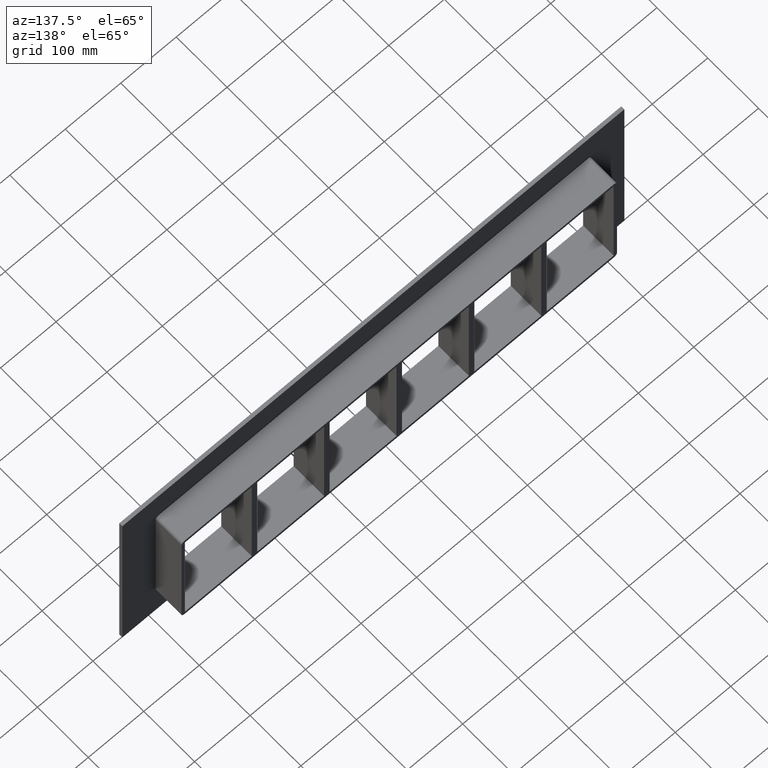
[diagram: clean part render]
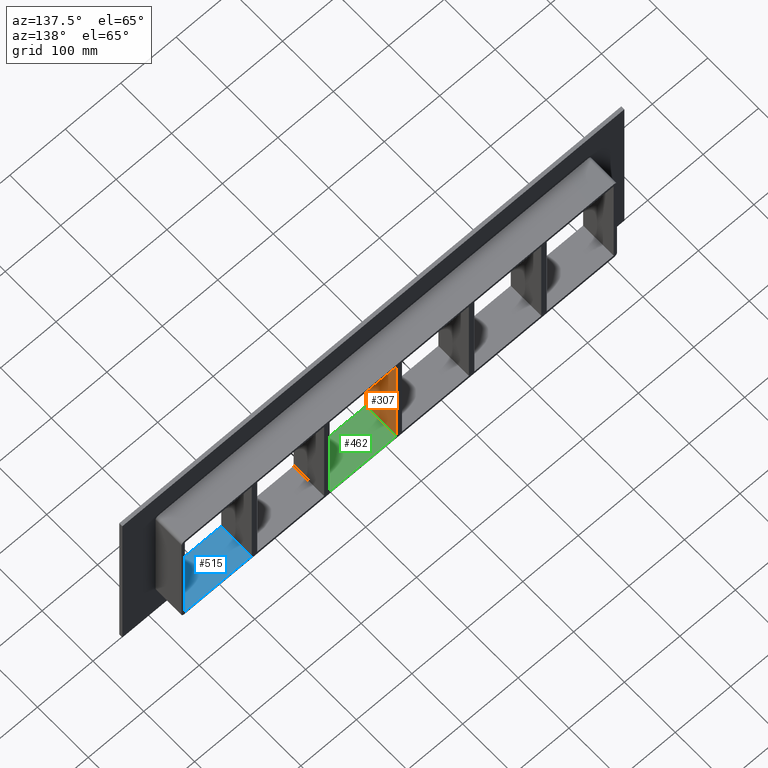
[diagram: same view with three faces highlighted in distinct colors, each labeled with its STEP entity id]
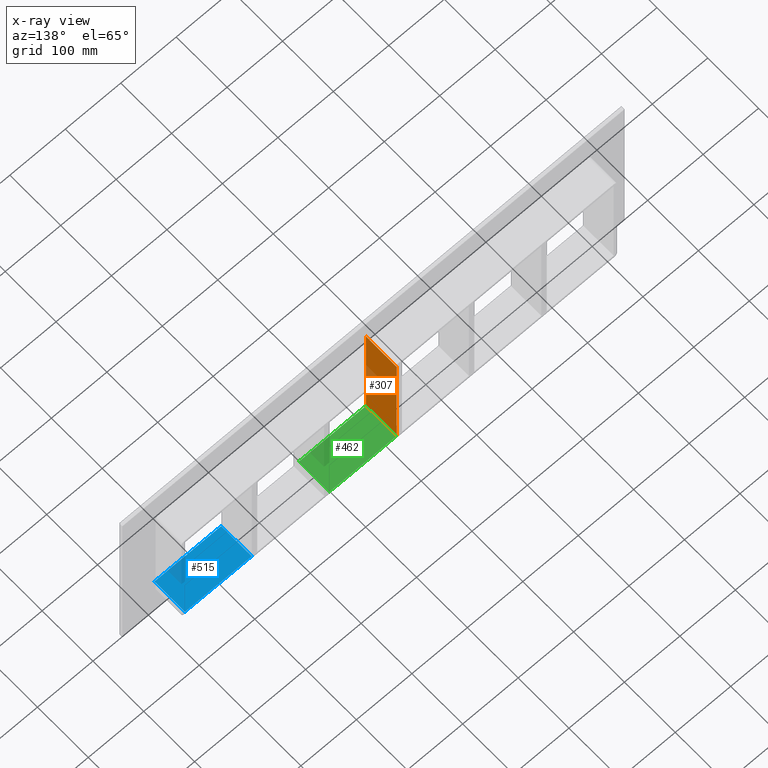
[diagram: x-ray of the same camera — body ghosted, the three highlighted faces saturated]
A machine part, auxiliary view with three faces highlighted in distinct colors.
The next image is the same camera in x-ray (body ghosted, the three faces saturated) — at least one of them is partly hidden behind the body in this view.
Their STEP definitions:

[orange] entity #307 — the highlighted planar face has unit normal (1, 0, 0).
#268=CARTESIAN_POINT('',(4.999999999996376,-3.0,109.00000000000004));
#269=DIRECTION('',(1.0,0.0,0.0));
#270=DIRECTION('',(0.0,0.0,-1.0));
#271=AXIS2_PLACEMENT_3D('',#268,#269,#270);
#272=PLANE('',#271);
#273=CARTESIAN_POINT('',(4.999999999996376,-3.0,109.00000000000004));
#274=VERTEX_POINT('',#273);
#275=CARTESIAN_POINT('',(4.999999999996376,-3.0,-108.99999999998428));
#276=VERTEX_POINT('',#275);
#277=CARTESIAN_POINT('',(4.999999999996376,-3.0,109.00000000000004));
#278=DIRECTION('',(0.0,0.0,-1.0));
#279=VECTOR('',#278,217.99999999998434);
#280=LINE('',#277,#279);
#281=EDGE_CURVE('',#274,#276,#280,.T.);
#282=ORIENTED_EDGE('',*,*,#281,.T.);
#283=CARTESIAN_POINT('',(4.999999999996376,57.0,-108.9999999999843));
#284=VERTEX_POINT('',#283);
#285=CARTESIAN_POINT('',(4.999999999996376,57.000000000000007,-109.0));
#286=DIRECTION('',(0.0,-1.0,0.0));
#287=VECTOR('',#286,60.000000000000007);
#288=LINE('',#285,#287);
#289=EDGE_CURVE('',#284,#276,#288,.T.);
#290=ORIENTED_EDGE('',*,*,#289,.F.);
#291=CARTESIAN_POINT('',(4.999999999996376,57.0,109.00000000000004));
#292=VERTEX_POINT('',#291);
#293=CARTESIAN_POINT('',(4.999999999996376,57.0,109.00000000000004));
#294=DIRECTION('',(0.0,0.0,-1.0));
#295=VECTOR('',#294,217.99999999998434);
#296=LINE('',#293,#295);
#297=EDGE_CURVE('',#292,#284,#296,.T.);
#298=ORIENTED_EDGE('',*,*,#297,.F.);
#299=CARTESIAN_POINT('',(4.999999999996376,-3.0,109.00000000000003));
#300=DIRECTION('',(0.0,1.0,0.0));
#301=VECTOR('',#300,60.000000000000007);
#302=LINE('',#299,#301);
#303=EDGE_CURVE('',#274,#292,#302,.T.);
#304=ORIENTED_EDGE('',*,*,#303,.F.);
#305=EDGE_LOOP('',(#282,#290,#298,#304));
#306=FACE_OUTER_BOUND('',#305,.T.);
#307=ADVANCED_FACE('',(#306),#272,.T.);

[blue] entity #515 — the highlighted planar face has unit normal (0, 0, -1).
#115=CARTESIAN_POINT('',(265.99999999999642,-3.0,-108.99999999998428));
#116=VERTEX_POINT('',#115);
#123=CARTESIAN_POINT('',(265.99999999999642,57.0,-108.9999999999843));
#124=VERTEX_POINT('',#123);
#125=CARTESIAN_POINT('',(265.99999999999648,57.000000000000007,-109.0));
#126=DIRECTION('',(0.0,-1.0,0.0));
#127=VECTOR('',#126,60.000000000000007);
#128=LINE('',#125,#127);
#129=EDGE_CURVE('',#124,#116,#128,.T.);
#485=CARTESIAN_POINT('',(386.50000000000011,0.0,-109.0));
#486=DIRECTION('',(0.0,0.0,-1.0));
#487=DIRECTION('',(-1.0,0.0,0.0));
#488=AXIS2_PLACEMENT_3D('',#485,#486,#487);
#489=PLANE('',#488);
#490=ORIENTED_EDGE('',*,*,#129,.T.);
#491=CARTESIAN_POINT('',(386.50000000000011,-3.0,-109.0));
#492=VERTEX_POINT('',#491);
#493=CARTESIAN_POINT('',(386.50000000000011,-3.0,-109.0));
#494=DIRECTION('',(-1.0,0.0,0.0));
#495=VECTOR('',#494,120.50000000000369);
#496=LINE('',#493,#495);
#497=EDGE_CURVE('',#492,#116,#496,.T.);
#498=ORIENTED_EDGE('',*,*,#497,.F.);
#499=CARTESIAN_POINT('',(386.50000000000011,57.0,-109.0));
#500=VERTEX_POINT('',#499);
#501=CARTESIAN_POINT('',(386.50000000000011,56.999999999999993,-109.0));
#502=DIRECTION('',(0.0,-1.0,0.0));
#503=VECTOR('',#502,59.999999999999993);
#504=LINE('',#501,#503);
#505=EDGE_CURVE('',#500,#492,#504,.T.);
#506=ORIENTED_EDGE('',*,*,#505,.F.);
#507=CARTESIAN_POINT('',(265.99999999999642,57.0,-109.0));
#508=DIRECTION('',(1.0,0.0,0.0));
#509=VECTOR('',#508,120.50000000000369);
#510=LINE('',#507,#509);
#511=EDGE_CURVE('',#124,#500,#510,.T.);
#512=ORIENTED_EDGE('',*,*,#511,.F.);
#513=EDGE_LOOP('',(#490,#498,#506,#512));
#514=FACE_OUTER_BOUND('',#513,.T.);
#515=ADVANCED_FACE('',(#514),#489,.F.);

[green] entity #462 — the highlighted planar face has unit normal (0, 0, -1).
#153=CARTESIAN_POINT('',(125.49999999999862,-3.0,-109.0));
#154=VERTEX_POINT('',#153);
#171=CARTESIAN_POINT('',(125.49999999999862,57.0,-109.0));
#172=VERTEX_POINT('',#171);
#179=CARTESIAN_POINT('',(125.49999999999862,-3.0,-109.0));
#180=DIRECTION('',(0.0,1.0,0.0));
#181=VECTOR('',#180,60.000000000000007);
#182=LINE('',#179,#181);
#183=EDGE_CURVE('',#154,#172,#182,.T.);
#275=CARTESIAN_POINT('',(4.999999999996376,-3.0,-108.99999999998428));
#276=VERTEX_POINT('',#275);
#283=CARTESIAN_POINT('',(4.999999999996376,57.0,-108.9999999999843));
#284=VERTEX_POINT('',#283);
#285=CARTESIAN_POINT('',(4.999999999996376,57.000000000000007,-109.0));
#286=DIRECTION('',(0.0,-1.0,0.0));
#287=VECTOR('',#286,60.000000000000007);
#288=LINE('',#285,#287);
#289=EDGE_CURVE('',#284,#276,#288,.T.);
#441=CARTESIAN_POINT('',(386.50000000000011,0.0,-109.0));
#442=DIRECTION('',(0.0,0.0,-1.0));
#443=DIRECTION('',(-1.0,0.0,0.0));
#444=AXIS2_PLACEMENT_3D('',#441,#442,#443);
#445=PLANE('',#444);
#446=ORIENTED_EDGE('',*,*,#183,.T.);
#447=CARTESIAN_POINT('',(4.99999999999639,57.0,-109.0));
#448=DIRECTION('',(1.0,0.0,0.0));
#449=VECTOR('',#448,120.50000000000223);
#450=LINE('',#447,#449);
#451=EDGE_CURVE('',#284,#172,#450,.T.);
#452=ORIENTED_EDGE('',*,*,#451,.F.);
#453=ORIENTED_EDGE('',*,*,#289,.T.);
#454=CARTESIAN_POINT('',(125.49999999999862,-3.0,-109.0));
#455=DIRECTION('',(-1.0,0.0,0.0));
#456=VECTOR('',#455,120.50000000000223);
#457=LINE('',#454,#456);
#458=EDGE_CURVE('',#154,#276,#457,.T.);
#459=ORIENTED_EDGE('',*,*,#458,.F.);
#460=EDGE_LOOP('',(#446,#452,#453,#459));
#461=FACE_OUTER_BOUND('',#460,.T.);
#462=ADVANCED_FACE('',(#461),#445,.F.);